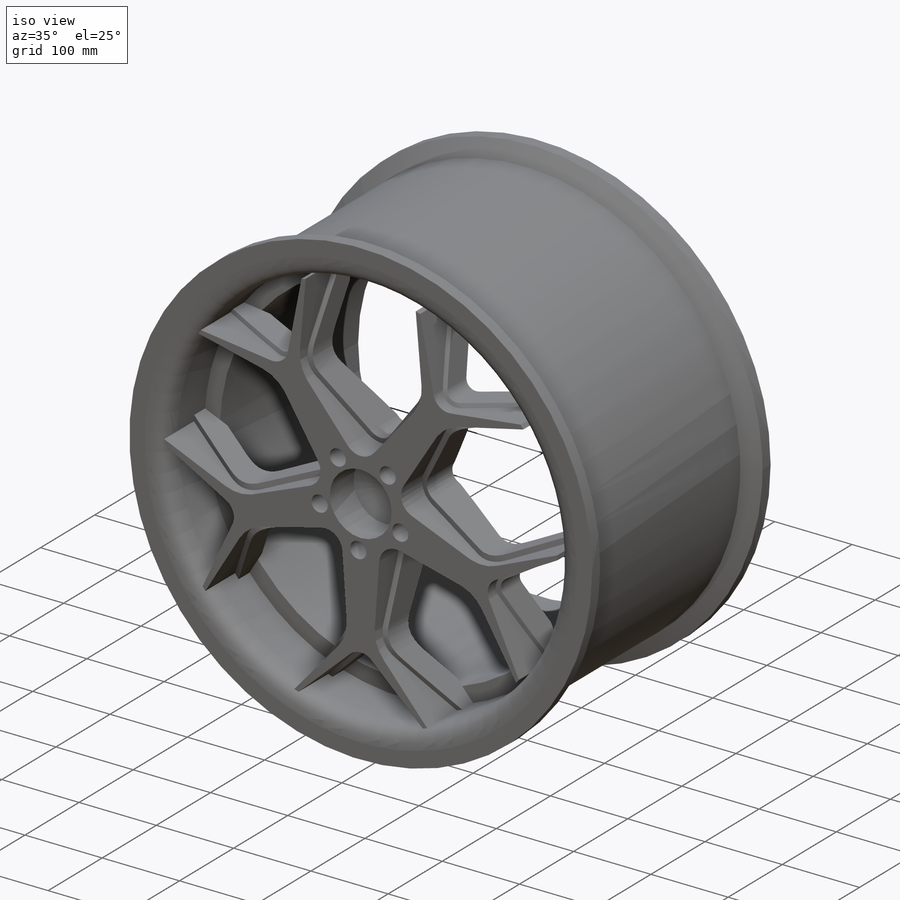
[diagram: iso view]
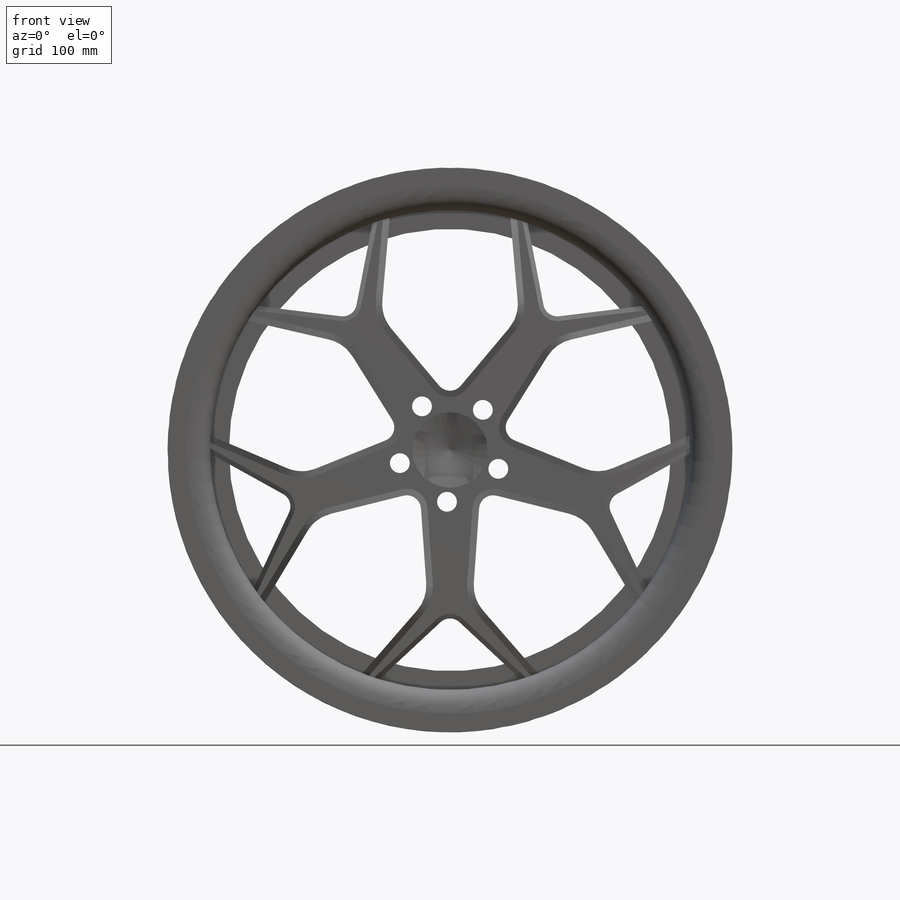
[diagram: front view]
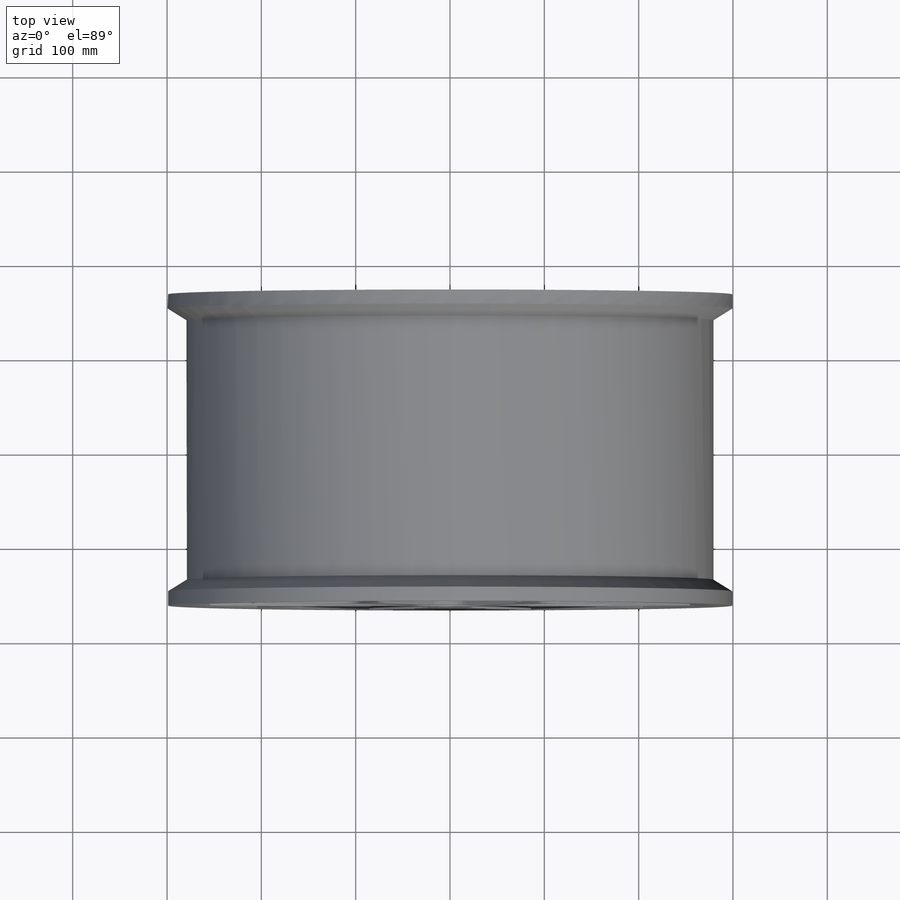
[diagram: top view]
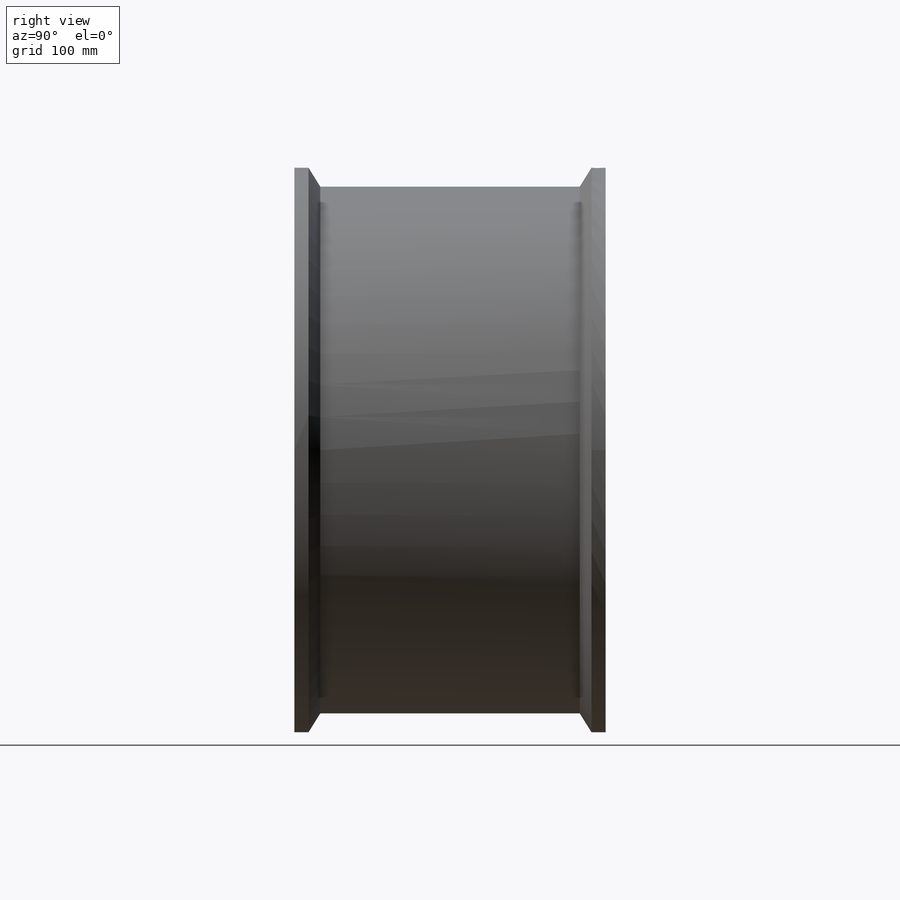
[diagram: right view]
SOLIDWORKS PART (.sldprt)
format: sldprt  version: not decoded by parser v0  size: 943,104 bytes
history: native  units: mm
features: sketch x7, fillet x4, plane x3, cut_extrude x3, revolve x2, pattern_circular x2, material x1, extrude x1 (+10 scaffold rows collapsed)
feature tree (33):
  scaffold x10  (default folders/planes/origin — collapsed)
  material  "Material <not specified>"
  plane  "Alzado"
  plane  "Planta"
  plane  "Vista lateral"
  sketch  "Croquis3"  dims[D9=55.0mm D10=55.0mm D1=279.4mm D2=165.0mm D3=15.0mm D4=20.0mm D5=20.0mm D6=90.0mm D7=20.0mm D8=25.0mm]
  revolve  "Revolución1"  Angle=360deg
  sketch  "Croquis6"  dims[D1=70.0mm D2=110.0mm D3=30.0mm D4=55.0mm D5=35.0mm D6=165.0mm D7=165.0mm D8=155.5mm]
  revolve  "Revolución3"  Angle=360deg
  fillet  "Redondeo2"  Radius=50mm
  sketch  "Croquis11"  dims[c1.D1=54.5mm c1.D2=64.0mm c1.D3=~129.909808mm c2.D3=5.0deg c2.D4=~55.424538mm c3.D4=40.0deg]
  cut_extrude  "Cortar-Extruir8"  [1 undecoded]
  fillet  "Redondeo3"  Radius=40mm
  fillet  "Redondeo4"  Radius=15mm
  pattern_circular  "MatrizC1"  Count=5 Angle=360deg
  sketch  "Croquis12"  dims[c1.D1=150.0mm c1.D2=~166.200848mm c2.D2=47.0deg c2.D3=150.0mm]
  cut_extrude  "Cortar-Extruir10"  [1 undecoded]
  fillet  "Redondeo6"  Radius=15mm
  pattern_circular  "MatrizC3"  Count=5 Angle=360deg
  sketch  "Croquis15"  dims[D4=80.0mm D1=7.0mm D2=5.0mm D3=5.0]
  extrude  "Boss-Extrude1"  [1 undecoded]
  sketch  "Croquis15<2>"  dims[D1=10.0mm]
  sketch  "Sketch2"  dims[c1.D3=21.0mm c1.D1=21.035mm c1.D2=~42.073476mm c2.D3=80.0mm]
  cut_extrude  "Cut-Extrude1"  [1 undecoded]
decode coverage: 15 of 19 modeling features carry decoded parameters
note: ~ marks probable driven/reference dimensions
note: 4 parameter values undecoded
summary: no parameter record found for 4 features
note: suppression state not decoded; provenance and decode notes live in map.json
